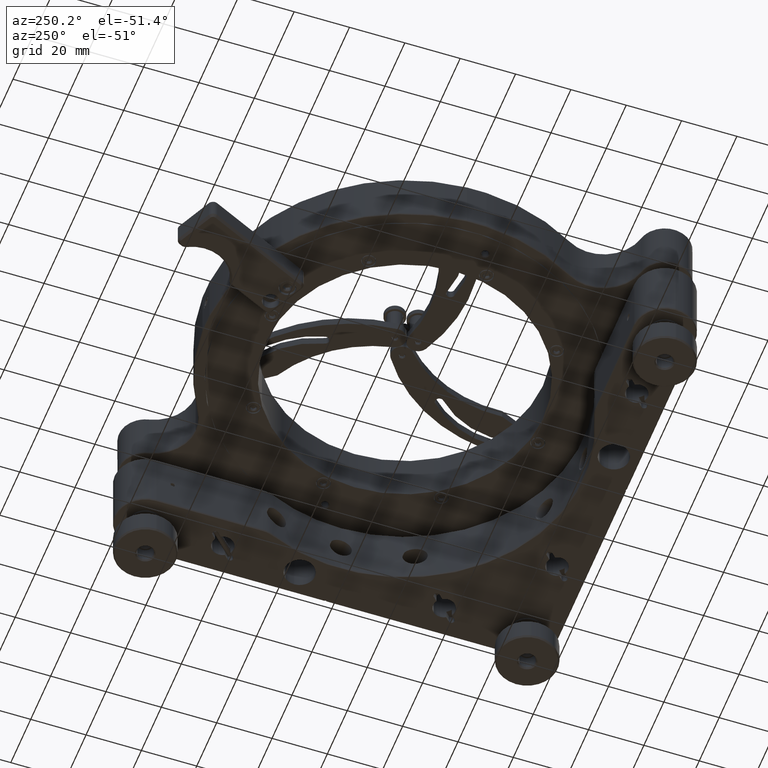
[diagram: clean part render]
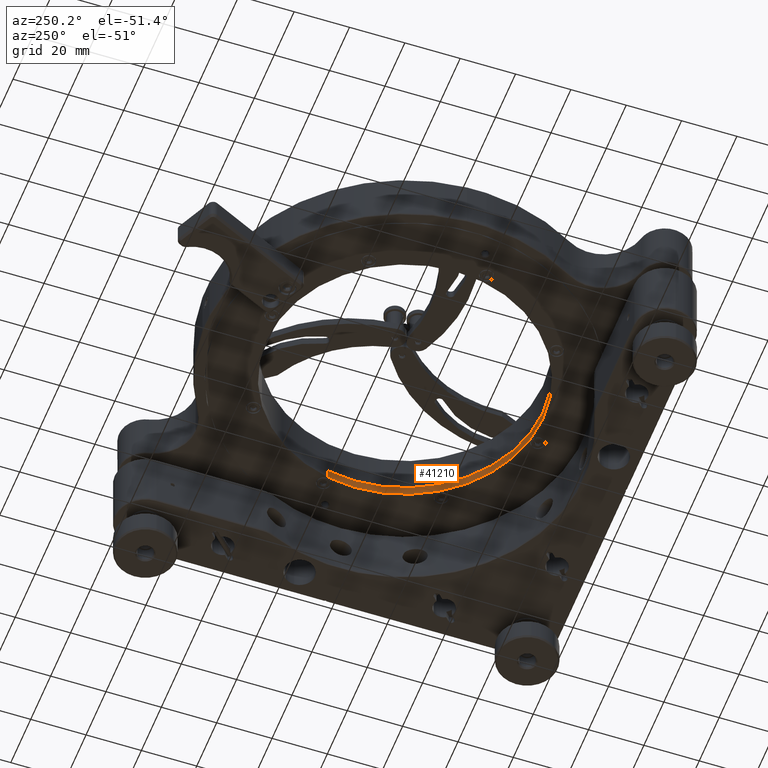
[diagram: same view with one face highlighted and labeled with its STEP entity id]
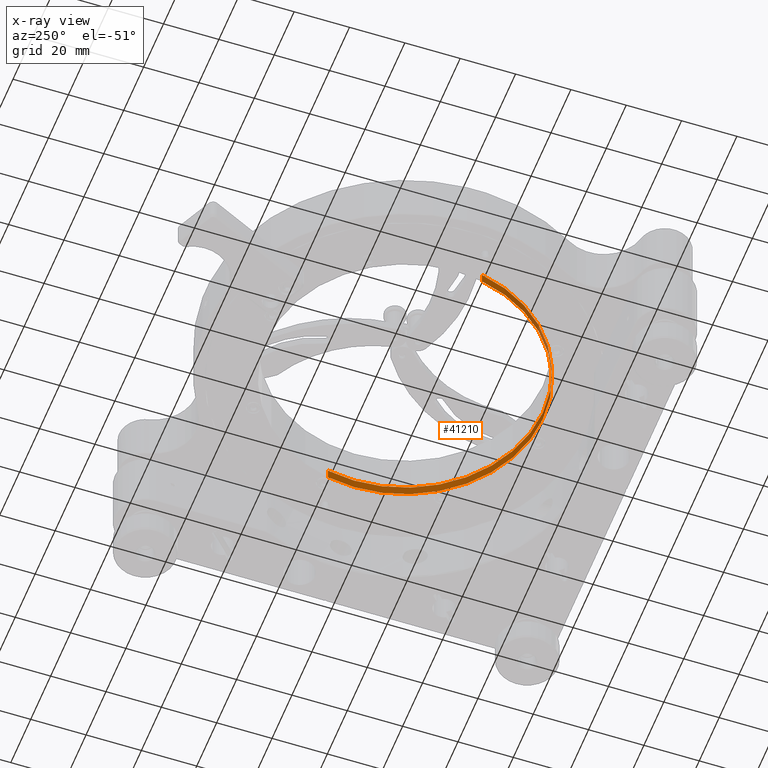
[diagram: x-ray of the same camera — body ghosted, the highlighted face saturated]
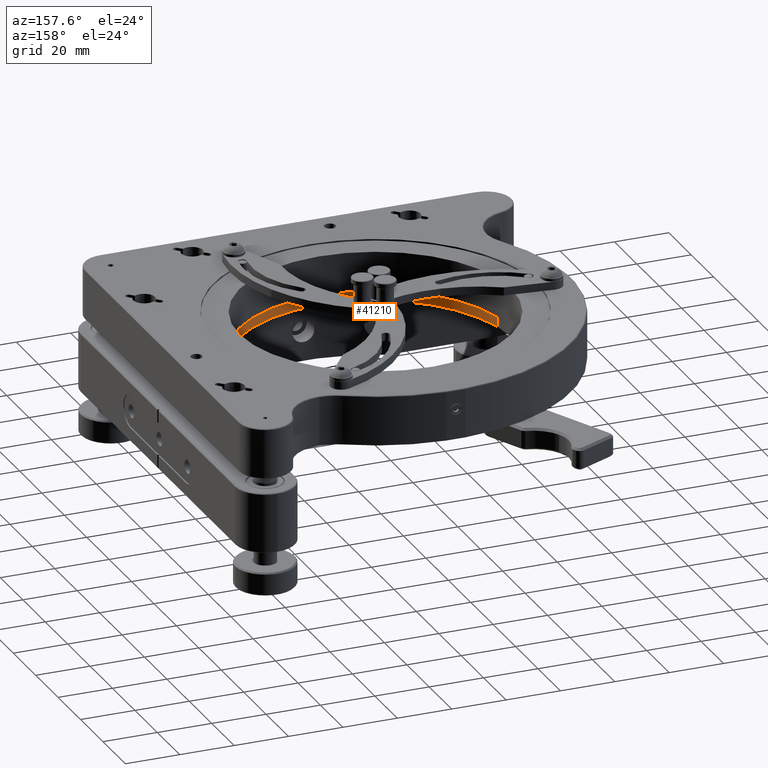
[diagram: same view with one face highlighted and labeled with its STEP entity id]
A machine part, auxiliary view. The second image highlights one B-rep face of the part: STEP entity #41210.
The next image is the same camera in x-ray: the body ghosted, the highlighted face saturated — about 0% of this face is hidden behind the body in this view.
A second angle (auxiliary view) of the same face is appended — the face is thin or edge-on in the first view.
In plain terms, the highlighted cylindrical surface (partial cylindrical patch) has radius 50 mm, axis along (0, 0, 1).
Its self-contained STEP definition (entity closure, byte-faithful):
#1917 = CARTESIAN_POINT ( 'NONE',  ( -16.08811214341548990, 7.546222820149273147, 86.73580865207227930 ) ) ;
#1962 = LINE ( 'NONE', #40102, #22941 ) ;
#2738 = ORIENTED_EDGE ( 'NONE', *, *, #35394, .T. ) ;
#4932 = DIRECTION ( 'NONE',  ( 9.820066859581441067E-16, 9.806269261414739231E-16, 1.000000000000000000 ) ) ;
#6150 = ORIENTED_EDGE ( 'NONE', *, *, #24997, .T. ) ;
#7959 = CARTESIAN_POINT ( 'NONE',  ( 32.86688447283687253, 17.71521029692000582, 86.73580865207222246 ) ) ;
#8076 = AXIS2_PLACEMENT_3D ( 'NONE', #21224, #4932, #17470 ) ;
#8373 = DIRECTION ( 'NONE',  ( 0.9790999323250472175, 0.2033797495354147666, -1.110223024625156540E-15 ) ) ;
#8869 = DIRECTION ( 'NONE',  ( 0.9790999323250472175, 0.2033797495354147666, -1.110223024625156540E-15 ) ) ;
#9857 = AXIS2_PLACEMENT_3D ( 'NONE', #12208, #18663, #8869 ) ;
#10253 = CARTESIAN_POINT ( 'NONE',  ( 81.82188108908923141, 27.88419777369074382, 86.73580865207216561 ) ) ;
#10387 = EDGE_LOOP ( 'NONE', ( #25165, #2738, #6150, #11594 ) ) ;
#11594 = ORIENTED_EDGE ( 'NONE', *, *, #33083, .F. ) ;
#11911 = DIRECTION ( 'NONE',  ( 9.820066859581441067E-16, 9.806269261414739231E-16, 1.000000000000000000 ) ) ;
#12208 = CARTESIAN_POINT ( 'NONE',  ( 32.86688447283686543, 17.71521029692000226, 83.13580865207222814 ) ) ;
#14960 = FACE_OUTER_BOUND ( 'NONE', #10387, .T. ) ;
#15481 = AXIS2_PLACEMENT_3D ( 'NONE', #7959, #11911, #8373 ) ;
#17470 = DIRECTION ( 'NONE',  ( 0.9790999323250472175, 0.2033797495354147666, -1.110223024625156540E-15 ) ) ;
#17747 = CARTESIAN_POINT ( 'NONE',  ( -16.08811214341550411, 7.546222820149269594, 83.13580865207227077 ) ) ;
#18663 = DIRECTION ( 'NONE',  ( -9.820066859581441067E-16, -9.806269261414739231E-16, -1.000000000000000000 ) ) ;
#19700 = VERTEX_POINT ( 'NONE', #26002 ) ;
#20564 = LINE ( 'NONE', #33455, #27166 ) ;
#21012 = CYLINDRICAL_SURFACE ( 'NONE', #8076, 50.00000000000000000 ) ;
#21224 = CARTESIAN_POINT ( 'NONE',  ( 32.86688447283686543, 17.71521029692000226, 83.13480865207222337 ) ) ;
#22941 = VECTOR ( 'NONE', #32823, 1000.000000000000000 ) ;
#23888 = DIRECTION ( 'NONE',  ( 9.820066859581441067E-16, 9.806269261414739231E-16, 1.000000000000000000 ) ) ;
#24069 = VERTEX_POINT ( 'NONE', #17747 ) ;
#24997 = EDGE_CURVE ( 'NONE', #34597, #40773, #26811, .T. ) ;
#25165 = ORIENTED_EDGE ( 'NONE', *, *, #35553, .T. ) ;
#26002 = CARTESIAN_POINT ( 'NONE',  ( 81.82188108908921720, 27.88419777369074026, 83.13580865207217130 ) ) ;
#26811 = CIRCLE ( 'NONE', #15481, 50.00000000000000000 ) ;
#27166 = VECTOR ( 'NONE', #23888, 1000.000000000000000 ) ;
#32466 = CIRCLE ( 'NONE', #9857, 50.00000000000000000 ) ;
#32823 = DIRECTION ( 'NONE',  ( 9.820066859581441067E-16, 9.806269261414739231E-16, 1.000000000000000000 ) ) ;
#33083 = EDGE_CURVE ( 'NONE', #19700, #40773, #1962, .T. ) ;
#33455 = CARTESIAN_POINT ( 'NONE',  ( -16.08811214341549700, 7.546222820149269594, 83.13480865207228021 ) ) ;
#34597 = VERTEX_POINT ( 'NONE', #1917 ) ;
#35394 = EDGE_CURVE ( 'NONE', #24069, #34597, #20564, .T. ) ;
#35553 = EDGE_CURVE ( 'NONE', #19700, #24069, #32466, .T. ) ;
#40102 = CARTESIAN_POINT ( 'NONE',  ( 81.82188108908921720, 27.88419777369074026, 83.13480865207216652 ) ) ;
#40773 = VERTEX_POINT ( 'NONE', #10253 ) ;
#41210 = ADVANCED_FACE ( 'NONE', ( #14960 ), #21012, .F. ) ;